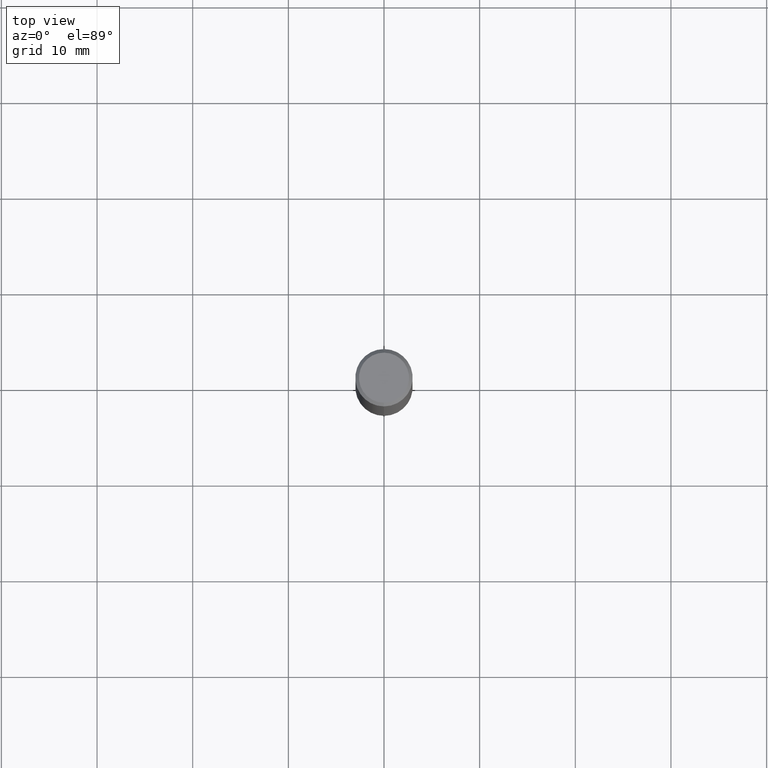
[diagram: clean part render]
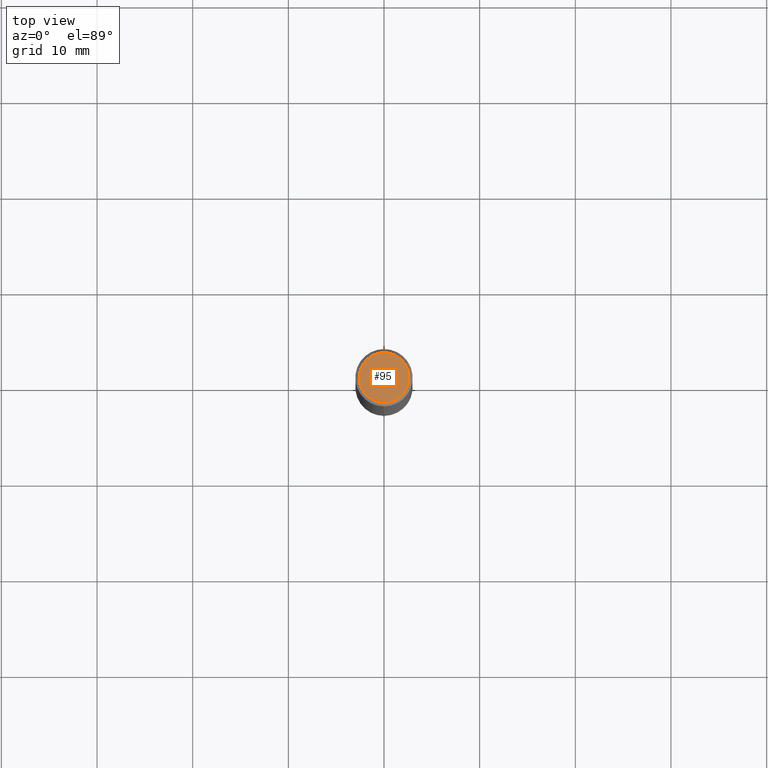
[diagram: same view with one face highlighted and labeled with its STEP entity id]
A machine part, top view. The second image highlights one B-rep face of the part: STEP entity #95.
In plain terms, the highlighted planar face has unit normal (-0, 0, 1).
Its self-contained STEP definition (entity closure, byte-faithful):
#7 = FACE_OUTER_BOUND ( 'NONE', #119, .T. ) ;
#27 = CARTESIAN_POINT ( 'NONE',  ( 7.199434520694515404E-16, 0.1030999999999996503, -3.602278539307603570E-16 ) ) ;
#29 = ORIENTED_EDGE ( 'NONE', *, *, #180, .F. ) ;
#67 = DIRECTION ( 'NONE',  ( -6.982962677686265922E-15, -1.000000000000000000, 3.493965605536000078E-15 ) ) ;
#95 = ADVANCED_FACE ( 'NONE', ( #7 ), #159, .T. ) ;
#104 = CIRCLE ( 'NONE', #373, 0.1030999999999996503 ) ;
#114 = EDGE_CURVE ( 'NONE', #374, #323, #104, .T. ) ;
#117 = CIRCLE ( 'NONE', #184, 0.1030999999999996503 ) ;
#119 = EDGE_LOOP ( 'NONE', ( #29, #154 ) ) ;
#139 = DIRECTION ( 'NONE',  ( 2.443734052025374583E-29, -3.493965605535999684E-15, -1.000000000000000000 ) ) ;
#154 = ORIENTED_EDGE ( 'NONE', *, *, #114, .F. ) ;
#159 = PLANE ( 'NONE',  #340 ) ;
#168 = DIRECTION ( 'NONE',  ( 2.443734052025374583E-29, -3.493965605535999684E-15, -1.000000000000000000 ) ) ;
#180 = EDGE_CURVE ( 'NONE', #323, #374, #117, .T. ) ;
#184 = AXIS2_PLACEMENT_3D ( 'NONE', #321, #139, #428 ) ;
#236 = DIRECTION ( 'NONE',  ( 6.982962677686265922E-15, 1.000000000000000000, -3.493965605535999684E-15 ) ) ;
#242 = CARTESIAN_POINT ( 'NONE',  ( -7.587710785535285755E-16, -0.1030999999999996503, 3.602278539307603570E-16 ) ) ;
#321 = CARTESIAN_POINT ( 'NONE',  ( 0.000000000000000000, 0.000000000000000000, 0.000000000000000000 ) ) ;
#323 = VERTEX_POINT ( 'NONE', #27 ) ;
#333 = CARTESIAN_POINT ( 'NONE',  ( 0.000000000000000000, 0.000000000000000000, 0.000000000000000000 ) ) ;
#336 = CARTESIAN_POINT ( 'NONE',  ( 7.199434520694515404E-16, 0.1030999999999996503, -3.601004167704755829E-16 ) ) ;
#340 = AXIS2_PLACEMENT_3D ( 'NONE', #336, #406, #67 ) ;
#373 = AXIS2_PLACEMENT_3D ( 'NONE', #333, #168, #236 ) ;
#374 = VERTEX_POINT ( 'NONE', #242 ) ;
#406 = DIRECTION ( 'NONE',  ( -2.443734052025374023E-29, 3.493965605536000078E-15, 1.000000000000000000 ) ) ;
#428 = DIRECTION ( 'NONE',  ( 6.982962677686265922E-15, 1.000000000000000000, -3.493965605535999684E-15 ) ) ;